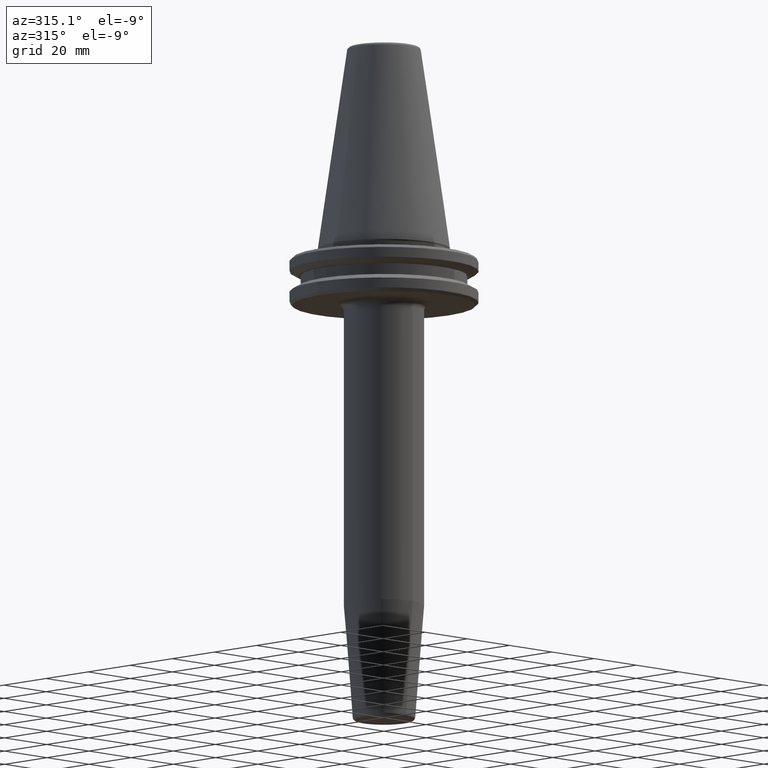
[diagram: clean part render]
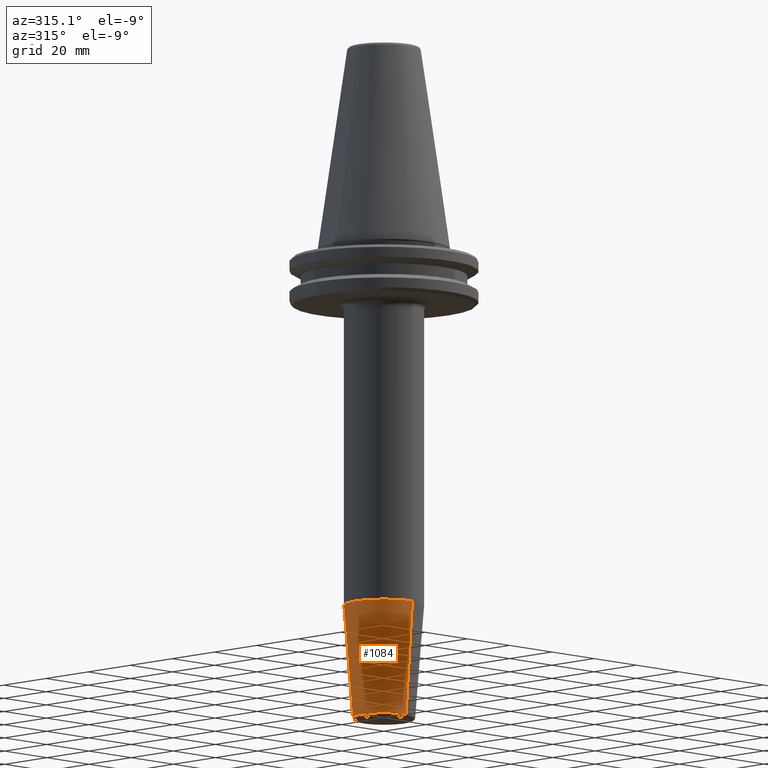
[diagram: same view with one face highlighted and labeled with its STEP entity id]
A machine part, auxiliary view. The second image highlights one B-rep face of the part: STEP entity #1084.
In plain terms, the highlighted conical surface has half-angle 4.5 deg.
Its self-contained STEP definition (entity closure, byte-faithful):
#52 = DIRECTION ( 'NONE',  ( 0.0000000000000000000, -1.000000000000000000, 0.0000000000000000000 ) ) ;
#59 = CARTESIAN_POINT ( 'NONE',  ( 1.285879139104720800E-015, 10.50000000000000000, -159.0784590957278500 ) ) ;
#122 = ORIENTED_EDGE ( 'NONE', *, *, #942, .T. ) ;
#133 = CARTESIAN_POINT ( 'NONE',  ( 0.0000000000000000000, -13.50000000000001100, -120.9598448871996500 ) ) ;
#195 = VERTEX_POINT ( 'NONE', #1042 ) ;
#229 = AXIS2_PLACEMENT_3D ( 'NONE', #296, #961, #385 ) ;
#241 = DIRECTION ( 'NONE',  ( -0.0000000000000000000, 1.256330602389183300E-016, -1.000000000000000000 ) ) ;
#296 = CARTESIAN_POINT ( 'NONE',  ( 0.0000000000000000000, 3.310199825829634700E-016, -159.0784590957278500 ) ) ;
#309 = CARTESIAN_POINT ( 'NONE',  ( 0.0000000000000000000, -10.50000000000000000, -159.0784590957278500 ) ) ;
#385 = DIRECTION ( 'NONE',  ( 0.0000000000000000000, 1.000000000000000000, 0.0000000000000000000 ) ) ;
#468 = LINE ( 'NONE', #59, #1194 ) ;
#515 = AXIS2_PLACEMENT_3D ( 'NONE', #923, #1028, #52 ) ;
#617 = CARTESIAN_POINT ( 'NONE',  ( 0.0000000000000000000, 10.49999999999999800, -159.0784590957278500 ) ) ;
#619 = CIRCLE ( 'NONE', #229, 10.50000000000000000 ) ;
#623 = AXIS2_PLACEMENT_3D ( 'NONE', #809, #241, #909 ) ;
#654 = ORIENTED_EDGE ( 'NONE', *, *, #856, .T. ) ;
#668 = CONICAL_SURFACE ( 'NONE', #515, 10.50000000000000000, 0.07853981633973655700 ) ;
#690 = ORIENTED_EDGE ( 'NONE', *, *, #754, .F. ) ;
#713 = EDGE_LOOP ( 'NONE', ( #734, #690, #654, #122 ) ) ;
#718 = VECTOR ( 'NONE', #1168, 1000.000000000000000 ) ;
#732 = DIRECTION ( 'NONE',  ( 9.608468044709099700E-018, 0.07845909572783657500, 0.9969173337331286300 ) ) ;
#734 = ORIENTED_EDGE ( 'NONE', *, *, #1085, .F. ) ;
#735 = CARTESIAN_POINT ( 'NONE',  ( 1.653273178848927500E-015, 13.50000000000000000, -120.9598448871996500 ) ) ;
#754 = EDGE_CURVE ( 'NONE', #195, #908, #619, .T. ) ;
#809 = CARTESIAN_POINT ( 'NONE',  ( 0.0000000000000000000, -4.457938172501148500E-015, -120.9598448871996500 ) ) ;
#856 = EDGE_CURVE ( 'NONE', #195, #964, #1242, .T. ) ;
#908 = VERTEX_POINT ( 'NONE', #617 ) ;
#909 = DIRECTION ( 'NONE',  ( 0.0000000000000000000, 1.000000000000000000, 0.0000000000000000000 ) ) ;
#923 = CARTESIAN_POINT ( 'NONE',  ( 0.0000000000000000000, 3.310199825829634700E-016, -159.0784590957278500 ) ) ;
#942 = EDGE_CURVE ( 'NONE', #964, #1239, #1058, .T. ) ;
#961 = DIRECTION ( 'NONE',  ( -0.0000000000000000000, 1.256330602389183300E-016, -1.000000000000000000 ) ) ;
#964 = VERTEX_POINT ( 'NONE', #133 ) ;
#966 = FACE_OUTER_BOUND ( 'NONE', #713, .T. ) ;
#1028 = DIRECTION ( 'NONE',  ( 0.0000000000000000000, -1.256330602389183300E-016, 1.000000000000000000 ) ) ;
#1042 = CARTESIAN_POINT ( 'NONE',  ( 1.285879139104720600E-015, -10.49999999999999800, -159.0784590957278500 ) ) ;
#1058 = CIRCLE ( 'NONE', #623, 13.50000000000000500 ) ;
#1084 = ADVANCED_FACE ( 'NONE', ( #966 ), #668, .T. ) ;
#1085 = EDGE_CURVE ( 'NONE', #908, #1239, #468, .T. ) ;
#1168 = DIRECTION ( 'NONE',  ( 0.0000000000000000000, -0.07845909572783682500, 0.9969173337331286300 ) ) ;
#1194 = VECTOR ( 'NONE', #732, 1000.000000000000000 ) ;
#1239 = VERTEX_POINT ( 'NONE', #735 ) ;
#1242 = LINE ( 'NONE', #309, #718 ) ;